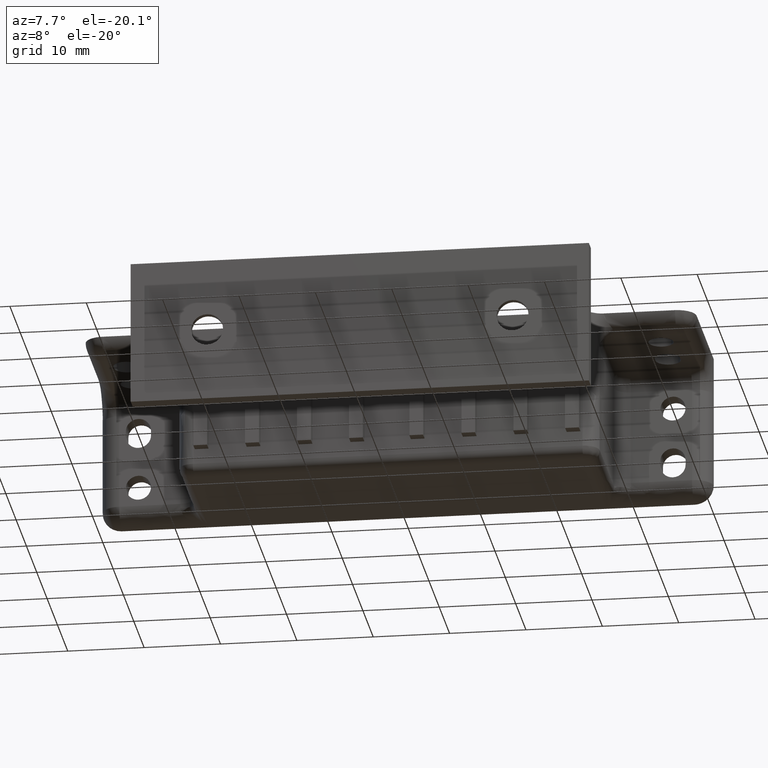
[diagram: clean part render]
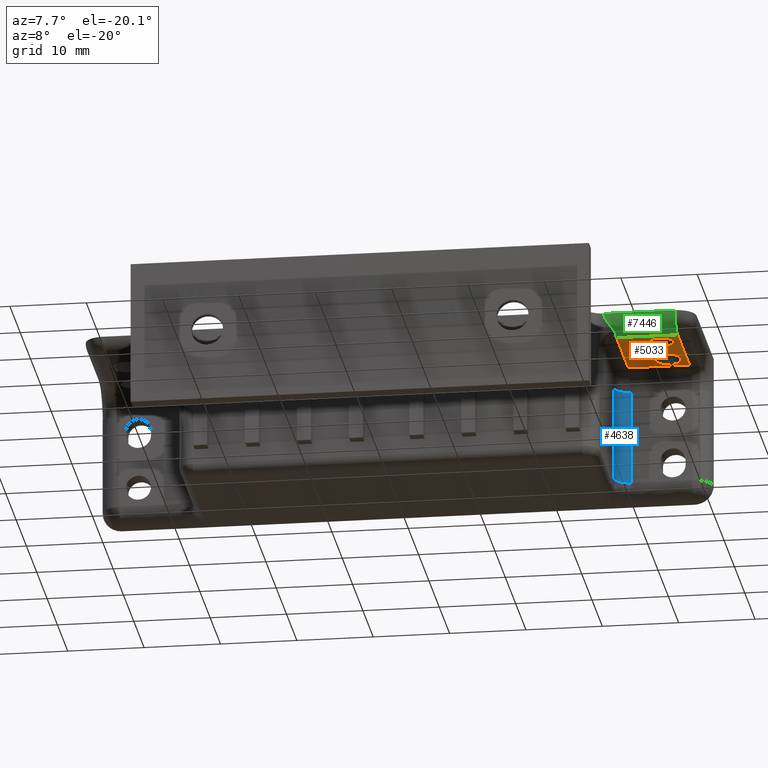
[diagram: same view with three faces highlighted in distinct colors, each labeled with its STEP entity id]
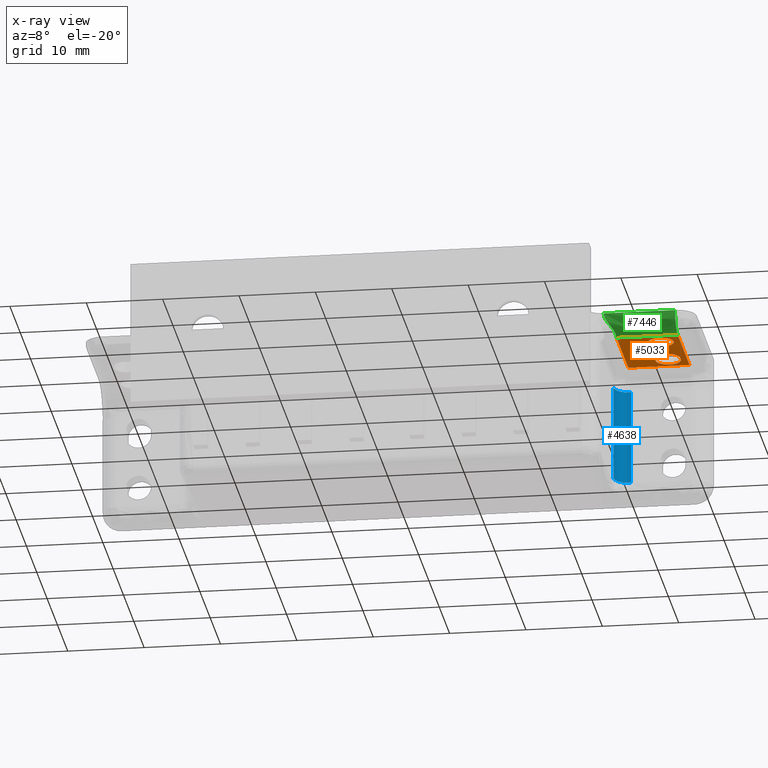
[diagram: x-ray of the same camera — body ghosted, the three highlighted faces saturated]
A machine part, auxiliary view with three faces highlighted in distinct colors.
The next image is the same camera in x-ray (body ghosted, the three faces saturated) — at least one of them is partly hidden behind the body in this view.
Their STEP definitions:

[orange] entity #5033 — the highlighted face is a freeform B-spline surface patch.
#2153=CARTESIAN_POINT('',(36.176863575438922,-12.843499575183460,7.499999999836977));
#2154=VERTEX_POINT('',#2153);
#2155=CARTESIAN_POINT('',(36.650000000180562,-14.000000000077680,7.499999999830860));
#2156=VERTEX_POINT('',#2155);
#2157=CARTESIAN_POINT('',(36.176863575438922,-12.843499575183460,7.499999999836977));
#2158=CARTESIAN_POINT('',(36.336158572093289,-13.005185722679419,7.499999999836116));
#2159=CARTESIAN_POINT('',(36.571243616410278,-13.372710884414460,7.499999999834183));
#2160=CARTESIAN_POINT('',(36.650154116140847,-13.799739235439860,7.499999999831915));
#2161=CARTESIAN_POINT('',(36.650000000180562,-14.000000000077680,7.499999999830860));
#2162=B_SPLINE_CURVE_WITH_KNOTS('',3,(#2157,#2158,#2159,#2160,#2161),.UNSPECIFIED.,.F.,.U.,(4,1,4),(0.000000039019475,0.680808183507348,1.281539445749163),.UNSPECIFIED.);
#2163=EDGE_CURVE('',#2154,#2156,#2162,.T.);
#2165=CARTESIAN_POINT('',(34.999998657490572,-15.650000000077130,7.499999999830860));
#2166=VERTEX_POINT('',#2165);
#2167=CARTESIAN_POINT('',(36.650000000180562,-14.000000000077680,7.499999999830860));
#2168=CARTESIAN_POINT('',(36.650026645225410,-14.134988622419099,7.499999999830861));
#2169=CARTESIAN_POINT('',(36.615047253938208,-14.418467867764530,7.499999999830861));
#2170=CARTESIAN_POINT('',(36.458245652636357,-14.810575524603660,7.499999999830873));
#2171=CARTESIAN_POINT('',(36.215165194173203,-15.138290549608030,7.499999999830836));
#2172=CARTESIAN_POINT('',(35.882634054869690,-15.418170501174520,7.499999999830880));
#2173=CARTESIAN_POINT('',(35.472480022287137,-15.606029951879870,7.499999999830870));
#2174=CARTESIAN_POINT('',(35.148486076304231,-15.650034632090200,7.499999999830862));
#2175=CARTESIAN_POINT('',(34.999998657490572,-15.650000000077130,7.499999999830860));
#2176=B_SPLINE_CURVE_WITH_KNOTS('',3,(#2167,#2168,#2169,#2170,#2171,#2172,#2173,#2174,#2175),.UNSPECIFIED.,.F.,.U.,(4,1,1,1,1,1,4),(0.000000141356131,0.404977360985490,0.850462318752395,1.255460444701991,1.619906172156118,2.146401370972788,2.591879734942233),.UNSPECIFIED.);
#2177=EDGE_CURVE('',#2156,#2166,#2176,.T.);
#2179=CARTESIAN_POINT('',(33.823136424922197,-15.156500424971901,7.499999999836977));
#2180=VERTEX_POINT('',#2179);
#2181=CARTESIAN_POINT('',(34.999998657490572,-15.650000000077130,7.499999999830860));
#2182=CARTESIAN_POINT('',(34.795235901436570,-15.650166855784599,7.499999999831933));
#2183=CARTESIAN_POINT('',(34.358623767099090,-15.567617821744710,7.499999999834183));
#2184=CARTESIAN_POINT('',(33.985577247909887,-15.322252321992041,7.499999999836140));
#2185=CARTESIAN_POINT('',(33.823136424922197,-15.156500424971901,7.499999999836977));
#2186=B_SPLINE_CURVE_WITH_KNOTS('',3,(#2181,#2182,#2183,#2184,#2185),.UNSPECIFIED.,.F.,.U.,(4,1,4),(0.000000043603606,0.614231505497545,1.310338476679422),.UNSPECIFIED.);
#2187=EDGE_CURVE('',#2166,#2180,#2186,.T.);
#2256=CARTESIAN_POINT('',(35.000001342870540,-12.350000000078230,7.499999999830860));
#2257=VERTEX_POINT('',#2256);
#2258=CARTESIAN_POINT('',(35.000001342870540,-12.350000000078230,7.499999999830860));
#2259=CARTESIAN_POINT('',(35.177459079048873,-12.349888769907830,7.499999999831795));
#2260=CARTESIAN_POINT('',(35.464009048103620,-12.396715034933591,7.499999999833264));
#2261=CARTESIAN_POINT('',(35.864455903454967,-12.576447813853729,7.499999999835361));
#2262=CARTESIAN_POINT('',(36.071660267693410,-12.736377310527910,7.499999999836422));
#2263=CARTESIAN_POINT('',(36.176863575438922,-12.843499575183460,7.499999999836977));
#2264=B_SPLINE_CURVE_WITH_KNOTS('',3,(#2258,#2259,#2260,#2261,#2262,#2263),.UNSPECIFIED.,.F.,.U.,(4,1,1,4),(0.000000043604075,0.532336755248931,0.859907974815800,1.310338476679420),.UNSPECIFIED.);
#2265=EDGE_CURVE('',#2257,#2154,#2264,.T.);
#2300=CARTESIAN_POINT('',(33.350000000180557,-14.000000000077680,7.499999999830860));
#2301=VERTEX_POINT('',#2300);
#2302=CARTESIAN_POINT('',(33.823136424922197,-15.156500424971901,7.499999999836977));
#2303=CARTESIAN_POINT('',(33.663858538346531,-14.994799402688500,7.499999999836119));
#2304=CARTESIAN_POINT('',(33.428751910833078,-14.627301287956810,7.499999999834188));
#2305=CARTESIAN_POINT('',(33.349835772890543,-14.200259694438129,7.499999999831906));
#2306=CARTESIAN_POINT('',(33.350000000180557,-14.000000000077680,7.499999999830860));
#2307=B_SPLINE_CURVE_WITH_KNOTS('',3,(#2302,#2303,#2304,#2305,#2306),.UNSPECIFIED.,.F.,.U.,(4,1,4),(0.000000039019122,0.680808183507170,1.281539445749170),.UNSPECIFIED.);
#2308=EDGE_CURVE('',#2180,#2301,#2307,.T.);
#2310=CARTESIAN_POINT('',(33.350000000180557,-14.000000000077680,7.499999999830860));
#2311=CARTESIAN_POINT('',(33.349971526608392,-13.865009844126790,7.499999999830853));
#2312=CARTESIAN_POINT('',(33.384961128665672,-13.581534100362900,7.499999999830879));
#2313=CARTESIAN_POINT('',(33.531647764099148,-13.214734021415101,7.499999999830830));
#2314=CARTESIAN_POINT('',(33.789364906160642,-12.848688084339640,7.499999999830895));
#2315=CARTESIAN_POINT('',(34.107013525497507,-12.588002949499931,7.499999999830835));
#2316=CARTESIAN_POINT('',(34.541099894477021,-12.395678062058421,7.499999999830866));
#2317=CARTESIAN_POINT('',(34.824503693544720,-12.349905515876930,7.499999999830875));
#2318=CARTESIAN_POINT('',(35.000001342870540,-12.350000000078230,7.499999999830860));
#2319=B_SPLINE_CURVE_WITH_KNOTS('',3,(#2310,#2311,#2312,#2313,#2314,#2315,#2316,#2317,#2318),.UNSPECIFIED.,.F.,.U.,(4,1,1,1,1,1,4),(0.000000141360596,0.404977360989067,0.850462318754994,1.174475015821312,1.741418302588968,2.065411334108162,2.591879734942231),.UNSPECIFIED.);
#2320=EDGE_CURVE('',#2301,#2257,#2319,.T.);
#3063=CARTESIAN_POINT('',(29.500000000000000,-5.0,7.499999999830919));
#3064=VERTEX_POINT('',#3063);
#3076=CARTESIAN_POINT('',(29.500000000000000,-16.500000000000000,7.499999999830919));
#3077=VERTEX_POINT('',#3076);
#3078=CARTESIAN_POINT('',(29.500000000000000,-16.500000000000000,7.499999999830919));
#3079=CARTESIAN_POINT('',(29.500000000000000,-5.0,7.499999999830919));
#3080=QUASI_UNIFORM_CURVE('',1,(#3078,#3079),.UNSPECIFIED.,.F.,.U.);
#3081=EDGE_CURVE('',#3077,#3064,#3080,.T.);
#4742=CARTESIAN_POINT('',(37.500000000000000,-5.0,7.499999999830919));
#4743=VERTEX_POINT('',#4742);
#4744=CARTESIAN_POINT('',(29.500000000000000,-5.0,7.499999999830919));
#4745=CARTESIAN_POINT('',(37.500000000000000,-5.0,7.499999999830919));
#4746=QUASI_UNIFORM_CURVE('',1,(#4744,#4745),.UNSPECIFIED.,.F.,.U.);
#4747=EDGE_CURVE('',#3064,#4743,#4746,.T.);
#4931=CARTESIAN_POINT('',(29.100400015505549,-17.074424977710770,7.499999999830919));
#4932=CARTESIAN_POINT('',(37.899600199071173,-17.074424977710770,7.499999999830919));
#4933=CARTESIAN_POINT('',(29.100400015505549,-4.425574713835196,7.499999999830919));
#4934=CARTESIAN_POINT('',(37.899600199071173,-4.425574713835196,7.499999999830919));
#4935=B_SPLINE_SURFACE_WITH_KNOTS('',1,1,((#4931,#4933),(#4932,#4934)),.UNSPECIFIED.,.F.,.F.,.U.,(2,2),(2,2),(0.0,8.799200183565613),(0.0,12.648850263875570),.UNSPECIFIED.);
#4936=CARTESIAN_POINT('',(37.500000000000000,-16.500000000000000,7.499999999830919));
#4937=VERTEX_POINT('',#4936);
#4938=CARTESIAN_POINT('',(37.500000000000000,-16.500000000000000,7.499999999830919));
#4939=CARTESIAN_POINT('',(29.500000000000000,-16.500000000000000,7.499999999830919));
#4940=QUASI_UNIFORM_CURVE('',1,(#4938,#4939),.UNSPECIFIED.,.F.,.U.);
#4941=EDGE_CURVE('',#4937,#3077,#4940,.T.);
#4942=ORIENTED_EDGE('',*,*,#4941,.T.);
#4943=ORIENTED_EDGE('',*,*,#3081,.T.);
#4944=ORIENTED_EDGE('',*,*,#4747,.T.);
#4945=CARTESIAN_POINT('',(37.500000000000000,-5.0,7.499999999830919));
#4946=CARTESIAN_POINT('',(37.500000000000000,-16.500000000000000,7.499999999830919));
#4947=QUASI_UNIFORM_CURVE('',1,(#4945,#4946),.UNSPECIFIED.,.F.,.U.);
#4948=EDGE_CURVE('',#4743,#4937,#4947,.T.);
#4949=ORIENTED_EDGE('',*,*,#4948,.T.);
#4950=EDGE_LOOP('',(#4942,#4943,#4944,#4949));
#4951=FACE_OUTER_BOUND('',#4950,.T.);
#4952=CARTESIAN_POINT('',(36.650000000195753,-7.150000000081239,7.499999999830860));
#4953=VERTEX_POINT('',#4952);
#4954=CARTESIAN_POINT('',(36.650000000194197,-7.850000000081219,7.499999999830860));
#4955=VERTEX_POINT('',#4954);
#4956=CARTESIAN_POINT('',(36.650000000195753,-7.150000000081239,7.499999999830860));
#4957=CARTESIAN_POINT('',(36.650000000194197,-7.850000000081219,7.499999999830860));
#4958=QUASI_UNIFORM_CURVE('',1,(#4956,#4957),.UNSPECIFIED.,.F.,.U.);
#4959=EDGE_CURVE('',#4953,#4955,#4958,.T.);
#4960=ORIENTED_EDGE('',*,*,#4959,.F.);
#4961=CARTESIAN_POINT('',(35.000001342887522,-5.500000000078147,7.499999999830860));
#4962=VERTEX_POINT('',#4961);
#4963=CARTESIAN_POINT('',(35.000001342887522,-5.500000000078147,7.499999999830860));
#4964=CARTESIAN_POINT('',(35.202515974818013,-5.499828794449767,7.499999999830862));
#4965=CARTESIAN_POINT('',(35.526357930079598,-5.560415508420143,7.499999999830850));
#4966=CARTESIAN_POINT('',(35.924174221678783,-5.766880615593296,7.499999999830874));
#4967=CARTESIAN_POINT('',(36.235976436949592,-6.029174067655489,7.499999999830856));
#4968=CARTESIAN_POINT('',(36.463838589135243,-6.352697726217613,7.499999999830867));
#4969=CARTESIAN_POINT('',(36.615126843333783,-6.745053316028505,7.499999999830855));
#4970=CARTESIAN_POINT('',(36.650049738079566,-7.001506791696368,7.499999999830863));
#4971=CARTESIAN_POINT('',(36.650000000195753,-7.150000000081239,7.499999999830860));
#4972=B_SPLINE_CURVE_WITH_KNOTS('',3,(#4963,#4964,#4965,#4966,#4967,#4968,#4969,#4970,#4971),.UNSPECIFIED.,.F.,.U.,(4,1,1,1,1,1,4),(0.000000143198386,0.607471092771518,0.971972726594451,1.336418079638992,1.822407276902918,2.146400118896872,2.591878221380977),.UNSPECIFIED.);
#4973=EDGE_CURVE('',#4962,#4953,#4972,.T.);
#4974=ORIENTED_EDGE('',*,*,#4973,.F.);
#4975=CARTESIAN_POINT('',(33.350000000195692,-7.150000000073940,7.499999999830860));
#4976=VERTEX_POINT('',#4975);
#4977=CARTESIAN_POINT('',(33.350000000195692,-7.150000000073940,7.499999999830860));
#4978=CARTESIAN_POINT('',(33.349928770026992,-6.988005544182513,7.499999999830863));
#4979=CARTESIAN_POINT('',(33.398091762452502,-6.664070601860811,7.499999999830863));
#4980=CARTESIAN_POINT('',(33.608062587197438,-6.219932976941951,7.499999999830853));
#4981=CARTESIAN_POINT('',(33.892193980721999,-5.906536911218468,7.499999999830864));
#4982=CARTESIAN_POINT('',(34.193879100038060,-5.699618246408487,7.499999999830862));
#4983=CARTESIAN_POINT('',(34.541088529415042,-5.545664260464084,7.499999999830887));
#4984=CARTESIAN_POINT('',(34.824503501903237,-5.499905485816739,7.499999999830809));
#4985=CARTESIAN_POINT('',(35.000001342887522,-5.500000000078147,7.499999999830860));
#4986=B_SPLINE_CURVE_WITH_KNOTS('',3,(#4977,#4978,#4979,#4980,#4981,#4982,#4983,#4984,#4985),.UNSPECIFIED.,.F.,.U.,(4,1,1,1,1,1,4),(0.000000141360225,0.485969629238632,0.971973292385085,1.457909239709824,1.741418302587234,2.065411334106719,2.591879734941211),.UNSPECIFIED.);
#4987=EDGE_CURVE('',#4976,#4962,#4986,.T.);
#4988=ORIENTED_EDGE('',*,*,#4987,.F.);
#4989=CARTESIAN_POINT('',(33.350000000194150,-7.850000000073850,7.499999999830919));
#4990=VERTEX_POINT('',#4989);
#4991=CARTESIAN_POINT('',(33.350000000194150,-7.850000000073850,7.499999999830919));
#4992=CARTESIAN_POINT('',(33.350000000195692,-7.150000000073940,7.499999999830860));
#4993=QUASI_UNIFORM_CURVE('',1,(#4991,#4992),.UNSPECIFIED.,.F.,.U.);
#4994=EDGE_CURVE('',#4990,#4976,#4993,.T.);
#4995=ORIENTED_EDGE('',*,*,#4994,.F.);
#4996=CARTESIAN_POINT('',(35.000000000192372,-9.500000000077529,7.499999999830859));
#4997=VERTEX_POINT('',#4996);
#4998=CARTESIAN_POINT('',(35.000000000192372,-9.500000000077529,7.499999999830859));
#4999=CARTESIAN_POINT('',(34.865006724636721,-9.500034565412195,7.499999999830868));
#5000=CARTESIAN_POINT('',(34.608543977694737,-9.468341988947557,7.499999999830853));
#5001=CARTESIAN_POINT('',(34.239329004017577,-9.331140606097804,7.499999999830898));
#5002=CARTESIAN_POINT('',(33.945324835545939,-9.134657502942925,7.499999999830859));
#5003=CARTESIAN_POINT('',(33.699308625586013,-8.882524020294204,7.499999999830917));
#5004=CARTESIAN_POINT('',(33.521555575680722,-8.609309537220792,7.499999999830900));
#5005=CARTESIAN_POINT('',(33.384871230318460,-8.254949129868910,7.499999999830920));
#5006=CARTESIAN_POINT('',(33.349948089853392,-7.998494435521432,7.499999999830881));
#5007=CARTESIAN_POINT('',(33.350000000194150,-7.850000000073850,7.499999999830919));
#5008=B_SPLINE_CURVE_WITH_KNOTS('',3,(#4998,#4999,#5000,#5001,#5002,#5003,#5004,#5005,#5006,#5007),.UNSPECIFIED.,.F.,.U.,(4,1,1,1,1,1,1,4),(0.000000142274245,0.404977243364978,0.769471159704762,1.174474673652443,1.457908813163546,1.822407809335063,2.146400744934900,2.591878978162419),.UNSPECIFIED.);
#5009=EDGE_CURVE('',#4997,#4990,#5008,.T.);
#5010=ORIENTED_EDGE('',*,*,#5009,.F.);
#5011=CARTESIAN_POINT('',(36.650000000194197,-7.850000000081219,7.499999999830860));
#5012=CARTESIAN_POINT('',(36.650057594514507,-8.011989488333768,7.499999999830847));
#5013=CARTESIAN_POINT('',(36.601936185719580,-8.335948876328143,7.499999999830863));
#5014=CARTESIAN_POINT('',(36.409404161106281,-8.743021268558868,7.499999999830841));
#5015=CARTESIAN_POINT('',(36.164518597487323,-9.033969732802307,7.499999999830857));
#5016=CARTESIAN_POINT('',(35.900066691863152,-9.245617112140728,7.499999999830845));
#5017=CARTESIAN_POINT('',(35.526361676293433,-9.439581626818155,7.499999999830848));
#5018=CARTESIAN_POINT('',(35.202513366247430,-9.500180207806809,7.499999999830869));
#5019=CARTESIAN_POINT('',(35.000000000192372,-9.500000000077529,7.499999999830859));
#5020=B_SPLINE_CURVE_WITH_KNOTS('',3,(#5011,#5012,#5013,#5014,#5015,#5016,#5017,#5018,#5019),.UNSPECIFIED.,.F.,.U.,(4,1,1,1,1,1,4),(0.000000142283552,0.485969488171738,0.971973009491641,1.336418468560485,1.619905698938425,1.984408543327071,2.591878978160263),.UNSPECIFIED.);
#5021=EDGE_CURVE('',#4955,#4997,#5020,.T.);
#5022=ORIENTED_EDGE('',*,*,#5021,.F.);
#5023=EDGE_LOOP('',(#4960,#4974,#4988,#4995,#5010,#5022));
#5024=FACE_BOUND('',#5023,.T.);
#5025=ORIENTED_EDGE('',*,*,#2177,.F.);
#5026=ORIENTED_EDGE('',*,*,#2163,.F.);
#5027=ORIENTED_EDGE('',*,*,#2265,.F.);
#5028=ORIENTED_EDGE('',*,*,#2320,.F.);
#5029=ORIENTED_EDGE('',*,*,#2308,.F.);
#5030=ORIENTED_EDGE('',*,*,#2187,.F.);
#5031=EDGE_LOOP('',(#5025,#5026,#5027,#5028,#5029,#5030));
#5032=FACE_BOUND('',#5031,.T.);
#5033=ADVANCED_FACE('',(#4951,#5024,#5032),#4935,.F.);

[blue] entity #4638 — the highlighted face is a freeform B-spline surface patch.
#3137=CARTESIAN_POINT('',(29.500000000000000,-2.500000000000000,4.999999999830920));
#3138=VERTEX_POINT('',#3137);
#3139=CARTESIAN_POINT('',(27.500000000000000,-4.499999999999949,4.999999999830920));
#3140=VERTEX_POINT('',#3139);
#3141=CARTESIAN_POINT('',(29.500000000000000,-2.500000000000000,4.999999999830920));
#3142=CARTESIAN_POINT('',(29.221787751204509,-2.499652384059530,4.999999999830930));
#3143=CARTESIAN_POINT('',(28.747539848642550,-2.600645728252196,4.999999999830914));
#3144=CARTESIAN_POINT('',(28.230564512007131,-2.928158932494875,4.999999999830915));
#3145=CARTESIAN_POINT('',(27.867755555372451,-3.309215436000040,4.999999999830927));
#3146=CARTESIAN_POINT('',(27.582349725057512,-3.812868560947734,4.999999999830910));
#3147=CARTESIAN_POINT('',(27.499800974715392,-4.254544595699023,4.999999999830927));
#3148=CARTESIAN_POINT('',(27.500000000000000,-4.499999999999949,4.999999999830920));
#3149=B_SPLINE_CURVE_WITH_KNOTS('',3,(#3141,#3142,#3143,#3144,#3145,#3146,#3147,#3148),.UNSPECIFIED.,.F.,.U.,(4,1,1,1,1,4),(0.000000109321302,0.834507449305098,1.423597471477478,1.816252681721958,2.405343138981060,3.141671488672966),.UNSPECIFIED.);
#3150=EDGE_CURVE('',#3138,#3140,#3149,.T.);
#4595=CARTESIAN_POINT('',(29.517453070996751,-2.500076153871658,5.312499999830920));
#4596=CARTESIAN_POINT('',(29.517453070996751,-2.500076153871658,-7.820312500169079));
#4597=CARTESIAN_POINT('',(27.372797315976513,-2.481360026640906,5.312499999830921));
#4598=CARTESIAN_POINT('',(27.372797315976513,-2.481360026640906,-7.820312500169079));
#4599=CARTESIAN_POINT('',(27.503730403156268,-4.622097079069711,5.312499999830920));
#4600=CARTESIAN_POINT('',(27.503730403156268,-4.622097079069711,-7.820312500169079));
#4608=(BOUNDED_SURFACE()B_SPLINE_SURFACE(1,2,((#4595,#4597,#4599),(#4596,#4598,#4600)),.UNSPECIFIED.,.F.,.F.,.U.)B_SPLINE_SURFACE_WITH_KNOTS((2,2),(3,3),(0.0,13.132812500000000),(0.0,3.478498999687461),.UNSPECIFIED.)GEOMETRIC_REPRESENTATION_ITEM()RATIONAL_B_SPLINE_SURFACE(((1.0,0.681998360062499,1.0),(1.0,0.681998360062499,1.0)))REPRESENTATION_ITEM('')SURFACE());
#4609=CARTESIAN_POINT('',(29.500000000000000,-2.500000000000000,-7.500000000169080));
#4610=VERTEX_POINT('',#4609);
#4611=CARTESIAN_POINT('',(29.500000000000000,-2.500000000000000,4.999999999830920));
#4612=CARTESIAN_POINT('',(29.500000000000000,-2.500000000000000,-7.500000000169080));
#4613=QUASI_UNIFORM_CURVE('',1,(#4611,#4612),.UNSPECIFIED.,.F.,.U.);
#4614=EDGE_CURVE('',#3138,#4610,#4613,.T.);
#4615=ORIENTED_EDGE('',*,*,#4614,.F.);
#4616=ORIENTED_EDGE('',*,*,#3150,.T.);
#4617=CARTESIAN_POINT('',(27.500000000000000,-4.500000000000000,-7.500000000169080));
#4618=VERTEX_POINT('',#4617);
#4619=CARTESIAN_POINT('',(27.500000000000000,-4.500000000000000,-7.500000000169080));
#4620=CARTESIAN_POINT('',(27.500000000000000,-4.499999999999949,4.999999999830920));
#4621=QUASI_UNIFORM_CURVE('',1,(#4619,#4620),.UNSPECIFIED.,.F.,.U.);
#4622=EDGE_CURVE('',#4618,#3140,#4621,.T.);
#4623=ORIENTED_EDGE('',*,*,#4622,.F.);
#4624=CARTESIAN_POINT('',(29.500000000000000,-2.500000000000000,-7.500000000169080));
#4625=CARTESIAN_POINT('',(29.254523893433561,-2.499767587564453,-7.500000000169082));
#4626=CARTESIAN_POINT('',(28.878361313218701,-2.570195966449094,-7.500000000169084));
#4627=CARTESIAN_POINT('',(28.423102102870970,-2.799405516810013,-7.500000000169080));
#4628=CARTESIAN_POINT('',(28.112024284201741,-3.042168561686777,-7.500000000169082));
#4629=CARTESIAN_POINT('',(27.854307903507259,-3.340961272092147,-7.500000000169076));
#4630=CARTESIAN_POINT('',(27.586751215795399,-3.813014449470765,-7.500000000169086));
#4631=CARTESIAN_POINT('',(27.499637614214500,-4.221763017825195,-7.500000000169071));
#4632=CARTESIAN_POINT('',(27.500000000000000,-4.500000000000000,-7.500000000169080));
#4633=B_SPLINE_CURVE_WITH_KNOTS('',3,(#4624,#4625,#4626,#4627,#4628,#4629,#4630,#4631,#4632),.UNSPECIFIED.,.F.,.U.,(4,1,1,1,1,1,4),(0.000000109320813,0.736328459012336,1.129042608372924,1.521760624554862,1.914442505318708,2.307164148688361,3.141671488672994),.UNSPECIFIED.);
#4634=EDGE_CURVE('',#4610,#4618,#4633,.T.);
#4635=ORIENTED_EDGE('',*,*,#4634,.F.);
#4636=EDGE_LOOP('',(#4615,#4616,#4623,#4635));
#4637=FACE_OUTER_BOUND('',#4636,.T.);
#4638=ADVANCED_FACE('',(#4637),#4608,.F.);

[green] entity #7446 — the highlighted face is a freeform B-spline surface patch.
#3076=CARTESIAN_POINT('',(29.500000000000000,-16.500000000000000,7.499999999830919));
#3077=VERTEX_POINT('',#3076);
#4936=CARTESIAN_POINT('',(37.500000000000000,-16.500000000000000,7.499999999830919));
#4937=VERTEX_POINT('',#4936);
#4938=CARTESIAN_POINT('',(37.500000000000000,-16.500000000000000,7.499999999830919));
#4939=CARTESIAN_POINT('',(29.500000000000000,-16.500000000000000,7.499999999830919));
#4940=QUASI_UNIFORM_CURVE('',1,(#4938,#4939),.UNSPECIFIED.,.F.,.U.);
#4941=EDGE_CURVE('',#4937,#3077,#4940,.T.);
#5661=CARTESIAN_POINT('',(28.145751311064750,-19.0,9.999999999830949));
#5662=VERTEX_POINT('',#5661);
#5701=CARTESIAN_POINT('',(29.500000000000000,-17.333333333333350,7.642977395875771));
#5702=VERTEX_POINT('',#5701);
#5715=CARTESIAN_POINT('',(28.145751311064750,-19.0,9.999999999830949));
#5716=CARTESIAN_POINT('',(28.145751311064750,-19.000000000000011,9.963854046720359));
#5717=CARTESIAN_POINT('',(28.147352928604491,-18.999216504818630,9.927844452039613));
#5718=CARTESIAN_POINT('',(28.153667161062490,-18.996112908623971,9.856090624057027));
#5719=CARTESIAN_POINT('',(28.158411988343680,-18.993776631082149,9.820204858244553));
#5720=CARTESIAN_POINT('',(28.176781509306782,-18.984661863041559,9.714608792845938));
#5721=CARTESIAN_POINT('',(28.194501581448218,-18.975801484904640,9.646568077895349));
#5722=CARTESIAN_POINT('',(28.238349027958350,-18.953264806814150,9.514202816073945));
#5723=CARTESIAN_POINT('',(28.264479009983379,-18.939584012342269,9.449879957902738));
#5724=CARTESIAN_POINT('',(28.323107750106900,-18.907795857526860,9.324188397175579));
#5725=CARTESIAN_POINT('',(28.355784986418421,-18.889578702517849,9.262557836724774));
#5726=CARTESIAN_POINT('',(28.458711505244981,-18.829818643201001,9.084809108482551));
#5727=CARTESIAN_POINT('',(28.534095310978181,-18.783061741658809,8.974533511619740));
#5728=CARTESIAN_POINT('',(28.689448954157520,-18.676204093748680,8.763841362348744));
#5729=CARTESIAN_POINT('',(28.769551021974081,-18.616084574414451,8.663527894717481));
#5730=CARTESIAN_POINT('',(28.889029787539471,-18.514432316122811,8.518259352073905));
#5731=CARTESIAN_POINT('',(28.928660410827920,-18.478684413003361,8.470838384073751));
#5732=CARTESIAN_POINT('',(29.006145492320869,-18.403838906393741,8.378604097569832));
#5733=CARTESIAN_POINT('',(29.044107186776181,-18.364654806212808,8.333663686980209));
#5734=CARTESIAN_POINT('',(29.154642707725170,-18.241277774476799,8.202109923229195));
#5735=CARTESIAN_POINT('',(29.223976793064139,-18.151389335630601,8.118720423401170));
#5736=CARTESIAN_POINT('',(29.316258333729522,-18.001211347073479,7.999890156084461));
#5737=CARTESIAN_POINT('',(29.345129517345789,-17.948390796579190,7.961213851439882));
#5738=CARTESIAN_POINT('',(29.397209511405109,-17.837163429928982,7.886595443162461));
#5739=CARTESIAN_POINT('',(29.420059308343902,-17.779547017301301,7.851172044986194));
#5740=CARTESIAN_POINT('',(29.458103382486112,-17.659831847400330,7.784262597799086));
#5741=CARTESIAN_POINT('',(29.473306363809090,-17.597736635749531,7.752774889868293));
#5742=CARTESIAN_POINT('',(29.489067208810720,-17.500702265735800,7.708743449501044));
#5743=CARTESIAN_POINT('',(29.493137591275580,-17.467652195462900,7.694584863411650));
#5744=CARTESIAN_POINT('',(29.498593922642868,-17.401031621070580,7.667741064711112));
#5745=CARTESIAN_POINT('',(29.500000000000000,-17.367365116371410,7.655009448156790));
#5746=CARTESIAN_POINT('',(29.500000000000000,-17.333333333333350,7.642977395875750));
#5747=B_SPLINE_CURVE_WITH_KNOTS('',3,(#5715,#5716,#5717,#5718,#5719,#5720,#5721,#5722,#5723,#5724,#5725,#5726,#5727,#5728,#5729,#5730,#5731,#5732,#5733,#5734,#5735,#5736,#5737,#5738,#5739,#5740,#5741,#5742,#5743,#5744,#5745,#5746),.UNSPECIFIED.,.F.,.U.,(4,2,2,2,2,2,2,2,2,2,2,2,2,2,2,4),(0.0,0.031250000000000,0.062500000000000,0.125000000000000,0.187499999999999,0.249999999999999,0.375000000000000,0.500000000000000,0.562500000000000,0.625000000000000,0.750000000000002,0.812500000000003,0.875000000000003,0.937500000000003,0.968750000000001,1.0),.UNSPECIFIED.);
#5748=EDGE_CURVE('',#5662,#5702,#5747,.T.);
#5771=CARTESIAN_POINT('',(29.500000000000000,-17.333333333333350,7.642977395875771));
#5772=CARTESIAN_POINT('',(29.499999999999989,-17.066357059797770,7.548444120443653));
#5773=CARTESIAN_POINT('',(29.500000000000011,-16.783210562173078,7.499905951104222));
#5774=CARTESIAN_POINT('',(29.500000000000000,-16.500000000000000,7.499999999830919));
#5775=B_SPLINE_CURVE_WITH_KNOTS('',3,(#5771,#5772,#5773,#5774),.UNSPECIFIED.,.F.,.U.,(4,4),(6.516758E-009,0.849608240409134),.UNSPECIFIED.);
#5776=EDGE_CURVE('',#5702,#3077,#5775,.T.);
#7352=CARTESIAN_POINT('',(37.500000000000000,-19.0,9.999999999830949));
#7353=VERTEX_POINT('',#7352);
#7366=CARTESIAN_POINT('',(37.500000000000000,-19.0,9.999999999830949));
#7367=CARTESIAN_POINT('',(37.500000000000043,-19.000013180025569,9.836380124010068));
#7368=CARTESIAN_POINT('',(37.499999999999979,-18.961758559721591,9.447758469622183));
#7369=CARTESIAN_POINT('',(37.499999999999957,-18.780507946856691,8.920792964506740));
#7370=CARTESIAN_POINT('',(37.500000000000107,-18.483560200874351,8.452003339155228));
#7371=CARTESIAN_POINT('',(37.499999999999922,-18.143462010948610,8.094774699301919));
#7372=CARTESIAN_POINT('',(37.500000000000121,-17.740191451301250,7.810760950433394));
#7373=CARTESIAN_POINT('',(37.499999999999808,-17.195323820176029,7.569198265705528));
#7374=CARTESIAN_POINT('',(37.500000000000192,-16.765909273137542,7.499853474017610));
#7375=CARTESIAN_POINT('',(37.500000000000000,-16.500000000000000,7.499999999830919));
#7376=B_SPLINE_CURVE_WITH_KNOTS('',3,(#7366,#7367,#7368,#7369,#7370,#7371,#7372,#7373,#7374,#7375),.UNSPECIFIED.,.F.,.U.,(4,1,1,1,1,1,1,4),(0.000000048786892,0.490877543823210,1.165858561915382,1.656751593041437,2.147620588130781,2.638510575360132,3.129400375707800,3.927089360836424),.UNSPECIFIED.);
#7377=EDGE_CURVE('',#7353,#4937,#7376,.T.);
#7421=CARTESIAN_POINT('',(37.733856217223376,-18.999143312438889,10.065442370600641));
#7422=CARTESIAN_POINT('',(27.906048688410792,-18.999143312438889,10.065442370600641));
#7423=CARTESIAN_POINT('',(37.733856217223376,-19.070561127990008,7.338106028345653));
#7424=CARTESIAN_POINT('',(27.906048688410785,-19.070561127990008,7.338106028345653));
#7425=CARTESIAN_POINT('',(37.733856217223376,-16.347378651162881,7.504663003776252));
#7426=CARTESIAN_POINT('',(27.906048688410792,-16.347378651162881,7.504663003776252));
#7434=(BOUNDED_SURFACE()B_SPLINE_SURFACE(1,2,((#7421,#7423,#7425),(#7422,#7424,#7426)),.UNSPECIFIED.,.F.,.F.,.U.)B_SPLINE_SURFACE_WITH_KNOTS((2,2),(3,3),(0.0,9.827807528812601),(0.0,4.400105308918334),.UNSPECIFIED.)GEOMETRIC_REPRESENTATION_ITEM()RATIONAL_B_SPLINE_SURFACE(((1.0,0.675590207615660,1.0),(1.0,0.675590207615660,1.0)))REPRESENTATION_ITEM('')SURFACE());
#7435=CARTESIAN_POINT('',(28.145751311064750,-19.0,9.999999999830949));
#7436=CARTESIAN_POINT('',(37.500000000000000,-19.0,9.999999999830949));
#7437=QUASI_UNIFORM_CURVE('',1,(#7435,#7436),.UNSPECIFIED.,.F.,.U.);
#7438=EDGE_CURVE('',#5662,#7353,#7437,.T.);
#7439=ORIENTED_EDGE('',*,*,#7438,.F.);
#7440=ORIENTED_EDGE('',*,*,#5748,.T.);
#7441=ORIENTED_EDGE('',*,*,#5776,.T.);
#7442=ORIENTED_EDGE('',*,*,#4941,.F.);
#7443=ORIENTED_EDGE('',*,*,#7377,.F.);
#7444=EDGE_LOOP('',(#7439,#7440,#7441,#7442,#7443));
#7445=FACE_OUTER_BOUND('',#7444,.T.);
#7446=ADVANCED_FACE('',(#7445),#7434,.T.);